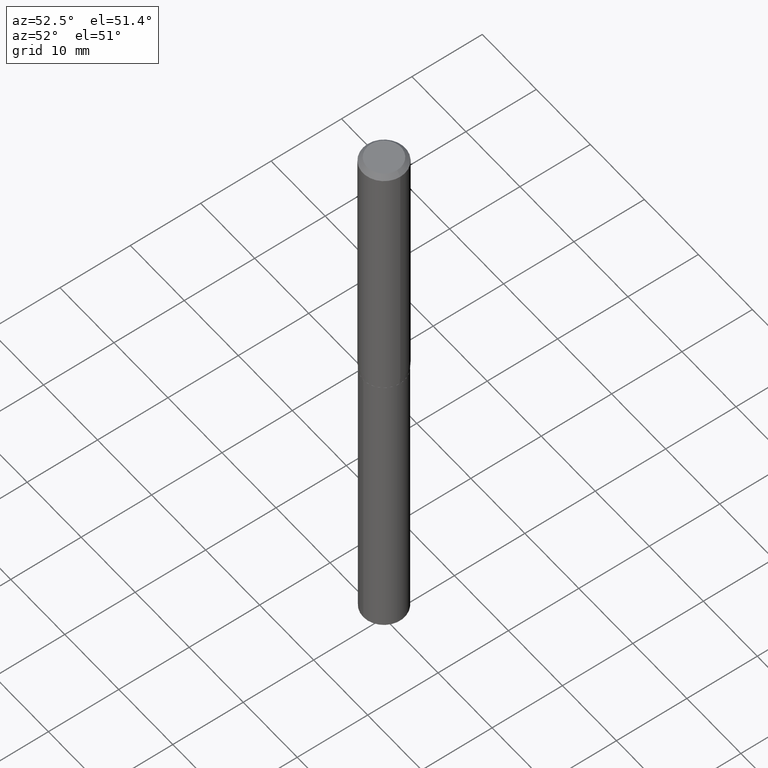
[diagram: clean part render]
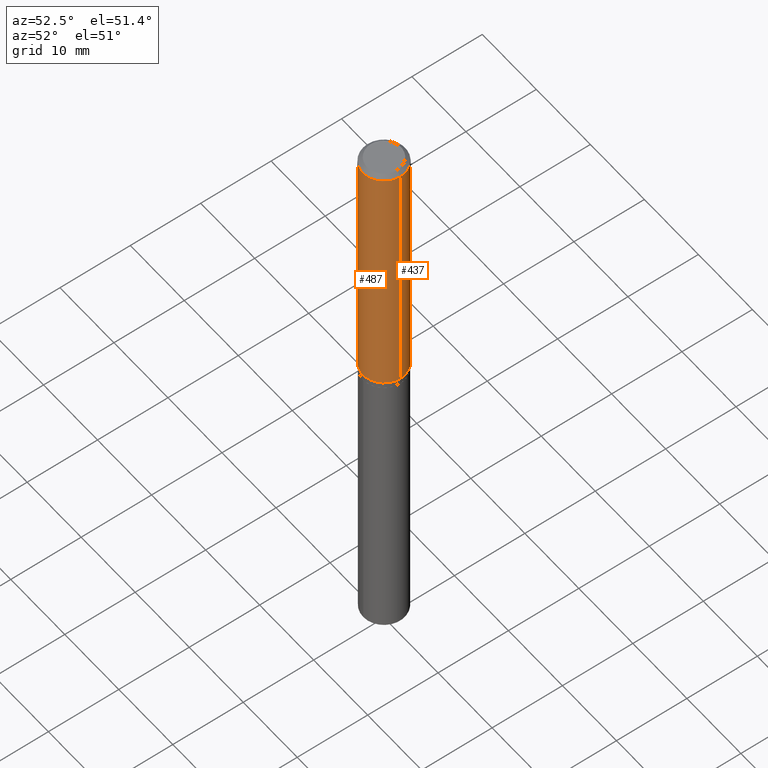
[diagram: same view with one multi-face feature highlighted, each face labeled with its STEP entity id]
A machine part, auxiliary view. The highlighted faces form ONE feature: a constant-radius fillet chain: 2 tangent blend faces with common blend radius 2.9997 mm. The faces share edges in the B-rep.
Their STEP definitions:
[1] entity #487 (Cylinder):
#22 = LINE ( 'NONE', #197, #274 ) ;
#23 = CIRCLE ( 'NONE', #302, 0.1180999999999999966 ) ;
#26 = CARTESIAN_POINT ( 'NONE',  ( -0.1181000000000000799, 8.391509709326788873E-16, -5.809262341591047988E-30 ) ) ;
#27 = EDGE_LOOP ( 'NONE', ( #411, #301, #90, #244 ) ) ;
#35 = EDGE_CURVE ( 'NONE', #115, #458, #338, .T. ) ;
#89 = DIRECTION ( 'NONE',  ( -2.445468806185136597E-29, 3.491481338843145583E-15, 1.000000000000000000 ) ) ;
#90 = ORIENTED_EDGE ( 'NONE', *, *, #254, .T. ) ;
#115 = VERTEX_POINT ( 'NONE', #340 ) ;
#126 = AXIS2_PLACEMENT_3D ( 'NONE', #406, #89, #319 ) ;
#140 = VECTOR ( 'NONE', #256, 39.37007874015748143 ) ;
#142 = FACE_OUTER_BOUND ( 'NONE', #27, .T. ) ;
#169 = DIRECTION ( 'NONE',  ( -2.445468806185136877E-29, 3.491481338843145188E-15, 1.000000000000000000 ) ) ;
#197 = CARTESIAN_POINT ( 'NONE',  ( 0.1181000000000000799, -8.246878922347486570E-16, 5.758764772215004644E-30 ) ) ;
#228 = CARTESIAN_POINT ( 'NONE',  ( 0.000000000000000000, 0.000000000000000000, 0.000000000000000000 ) ) ;
#241 = CARTESIAN_POINT ( 'NONE',  ( 0.1180999999999999966, -9.071566814582237199E-16, -0.02362000000000014088 ) ) ;
#244 = ORIENTED_EDGE ( 'NONE', *, *, #262, .F. ) ;
#250 = VERTEX_POINT ( 'NONE', #241 ) ;
#254 = EDGE_CURVE ( 'NONE', #458, #250, #22, .T. ) ;
#256 = DIRECTION ( 'NONE',  ( -2.445468806185136877E-29, 3.491481338843145188E-15, 1.000000000000000000 ) ) ;
#262 = EDGE_CURVE ( 'NONE', #299, #250, #23, .T. ) ;
#269 = AXIS2_PLACEMENT_3D ( 'NONE', #228, #343, #457 ) ;
#274 = VECTOR ( 'NONE', #169, 39.37007874015748143 ) ;
#292 = LINE ( 'NONE', #26, #140 ) ;
#294 = EDGE_CURVE ( 'NONE', #115, #299, #292, .T. ) ;
#299 = VERTEX_POINT ( 'NONE', #483 ) ;
#301 = ORIENTED_EDGE ( 'NONE', *, *, #35, .T. ) ;
#302 = AXIS2_PLACEMENT_3D ( 'NONE', #324, #474, #359 ) ;
#310 = CARTESIAN_POINT ( 'NONE',  ( 0.1181000000000001632, -5.918584591539955869E-15, -1.458949999999999969 ) ) ;
#319 = DIRECTION ( 'NONE',  ( 1.000000000000000000, -6.982962677686263555E-15, 0.000000000000000000 ) ) ;
#324 = CARTESIAN_POINT ( 'NONE',  ( 5.776197320209327532E-31, -8.246878922347559293E-17, -0.02362000000000014088 ) ) ;
#338 = CIRCLE ( 'NONE', #126, 0.1181000000000001632 ) ;
#340 = CARTESIAN_POINT ( 'NONE',  ( -0.1181000000000001632, -4.254745728372527042E-15, -1.458949999999999969 ) ) ;
#343 = DIRECTION ( 'NONE',  ( -2.445468806185136597E-29, 3.491481338843145583E-15, 1.000000000000000000 ) ) ;
#346 = CYLINDRICAL_SURFACE ( 'NONE', #269, 0.1181000000000000799 ) ;
#359 = DIRECTION ( 'NONE',  ( 1.000000000000000000, -6.982962677686266711E-15, 0.000000000000000000 ) ) ;
#406 = CARTESIAN_POINT ( 'NONE',  ( 3.567816714783804840E-29, -5.093896699305207606E-15, -1.458949999999999969 ) ) ;
#411 = ORIENTED_EDGE ( 'NONE', *, *, #294, .F. ) ;
#457 = DIRECTION ( 'NONE',  ( 1.000000000000000000, -6.982962677686266711E-15, 4.876176775795936353E-29 ) ) ;
#458 = VERTEX_POINT ( 'NONE', #310 ) ;
#474 = DIRECTION ( 'NONE',  ( -2.445468806185136597E-29, 3.491481338843145583E-15, 1.000000000000000000 ) ) ;
#483 = CARTESIAN_POINT ( 'NONE',  ( -0.1180999999999999966, -1.749031773331661954E-15, -0.02362000000000014088 ) ) ;
#487 = ADVANCED_FACE ( 'NONE', ( #142 ), #346, .T. ) ;
[2] entity #437 (Cylinder):
#22 = LINE ( 'NONE', #197, #274 ) ;
#26 = CARTESIAN_POINT ( 'NONE',  ( -0.1181000000000000799, 8.391509709326788873E-16, -5.809262341591047988E-30 ) ) ;
#38 = EDGE_LOOP ( 'NONE', ( #164, #283, #130, #137 ) ) ;
#52 = DIRECTION ( 'NONE',  ( -2.445468806185136597E-29, 3.491481338843145583E-15, 1.000000000000000000 ) ) ;
#60 = CIRCLE ( 'NONE', #91, 0.1181000000000001632 ) ;
#86 = DIRECTION ( 'NONE',  ( 1.000000000000000000, -6.982962677686266711E-15, 0.000000000000000000 ) ) ;
#91 = AXIS2_PLACEMENT_3D ( 'NONE', #195, #52, #373 ) ;
#114 = AXIS2_PLACEMENT_3D ( 'NONE', #357, #382, #86 ) ;
#115 = VERTEX_POINT ( 'NONE', #340 ) ;
#129 = CARTESIAN_POINT ( 'NONE',  ( 0.000000000000000000, 0.000000000000000000, 0.000000000000000000 ) ) ;
#130 = ORIENTED_EDGE ( 'NONE', *, *, #403, .F. ) ;
#137 = ORIENTED_EDGE ( 'NONE', *, *, #254, .F. ) ;
#140 = VECTOR ( 'NONE', #256, 39.37007874015748143 ) ;
#150 = CIRCLE ( 'NONE', #114, 0.1180999999999999966 ) ;
#151 = DIRECTION ( 'NONE',  ( 1.000000000000000000, -6.982962677686266711E-15, 4.876176775795936353E-29 ) ) ;
#164 = ORIENTED_EDGE ( 'NONE', *, *, #291, .T. ) ;
#169 = DIRECTION ( 'NONE',  ( -2.445468806185136877E-29, 3.491481338843145188E-15, 1.000000000000000000 ) ) ;
#195 = CARTESIAN_POINT ( 'NONE',  ( 3.567816714783804840E-29, -5.093896699305207606E-15, -1.458949999999999969 ) ) ;
#197 = CARTESIAN_POINT ( 'NONE',  ( 0.1181000000000000799, -8.246878922347486570E-16, 5.758764772215004644E-30 ) ) ;
#231 = FACE_OUTER_BOUND ( 'NONE', #38, .T. ) ;
#241 = CARTESIAN_POINT ( 'NONE',  ( 0.1180999999999999966, -9.071566814582237199E-16, -0.02362000000000014088 ) ) ;
#250 = VERTEX_POINT ( 'NONE', #241 ) ;
#254 = EDGE_CURVE ( 'NONE', #458, #250, #22, .T. ) ;
#256 = DIRECTION ( 'NONE',  ( -2.445468806185136877E-29, 3.491481338843145188E-15, 1.000000000000000000 ) ) ;
#274 = VECTOR ( 'NONE', #169, 39.37007874015748143 ) ;
#283 = ORIENTED_EDGE ( 'NONE', *, *, #294, .T. ) ;
#291 = EDGE_CURVE ( 'NONE', #458, #115, #60, .T. ) ;
#292 = LINE ( 'NONE', #26, #140 ) ;
#294 = EDGE_CURVE ( 'NONE', #115, #299, #292, .T. ) ;
#299 = VERTEX_POINT ( 'NONE', #483 ) ;
#310 = CARTESIAN_POINT ( 'NONE',  ( 0.1181000000000001632, -5.918584591539955869E-15, -1.458949999999999969 ) ) ;
#340 = CARTESIAN_POINT ( 'NONE',  ( -0.1181000000000001632, -4.254745728372527042E-15, -1.458949999999999969 ) ) ;
#357 = CARTESIAN_POINT ( 'NONE',  ( 5.776197320209327532E-31, -8.246878922347559293E-17, -0.02362000000000014088 ) ) ;
#373 = DIRECTION ( 'NONE',  ( 1.000000000000000000, -6.982962677686263555E-15, 0.000000000000000000 ) ) ;
#382 = DIRECTION ( 'NONE',  ( -2.445468806185136597E-29, 3.491481338843145583E-15, 1.000000000000000000 ) ) ;
#403 = EDGE_CURVE ( 'NONE', #250, #299, #150, .T. ) ;
#407 = AXIS2_PLACEMENT_3D ( 'NONE', #129, #435, #151 ) ;
#435 = DIRECTION ( 'NONE',  ( -2.445468806185136597E-29, 3.491481338843145583E-15, 1.000000000000000000 ) ) ;
#437 = ADVANCED_FACE ( 'NONE', ( #231 ), #466, .T. ) ;
#458 = VERTEX_POINT ( 'NONE', #310 ) ;
#466 = CYLINDRICAL_SURFACE ( 'NONE', #407, 0.1181000000000000799 ) ;
#483 = CARTESIAN_POINT ( 'NONE',  ( -0.1180999999999999966, -1.749031773331661954E-15, -0.02362000000000014088 ) ) ;